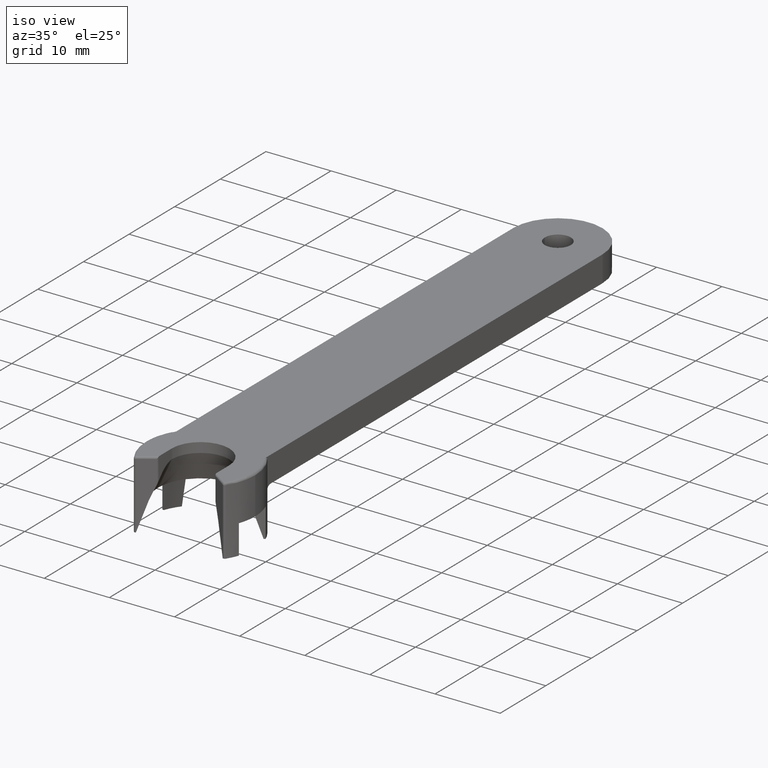
[diagram: clean part render]
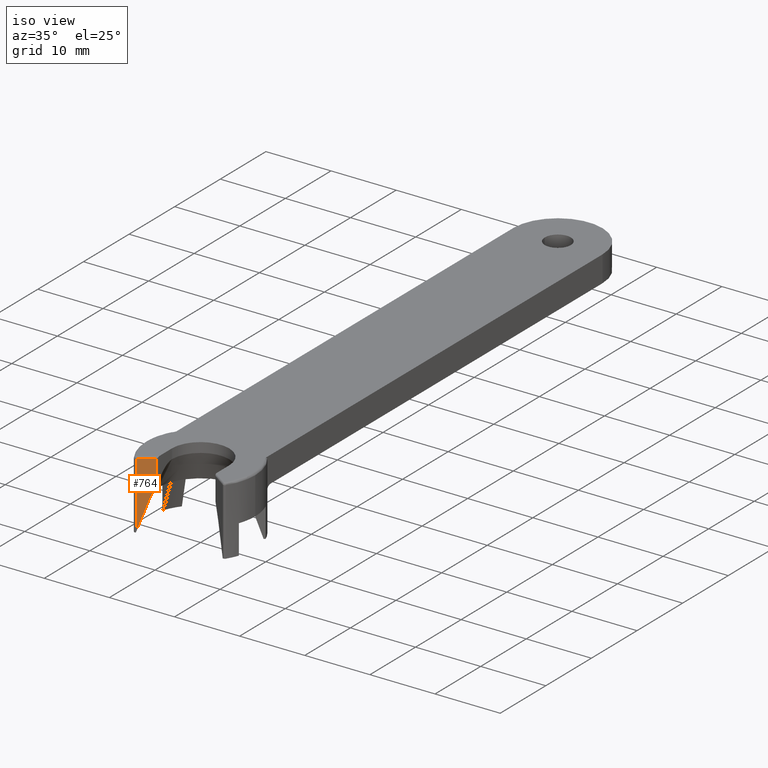
[diagram: same view with one face highlighted and labeled with its STEP entity id]
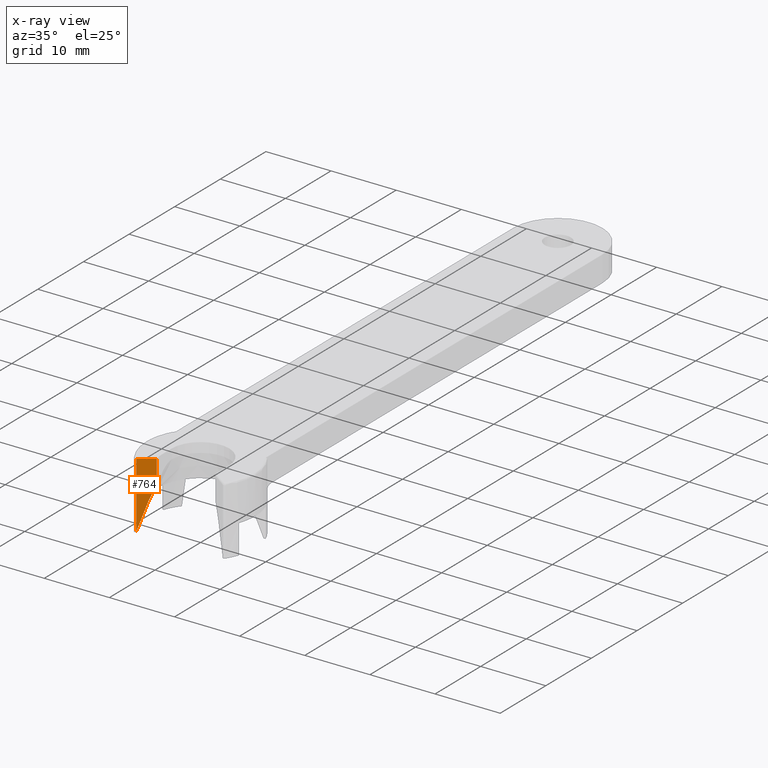
[diagram: x-ray of the same camera — body ghosted, the highlighted face saturated]
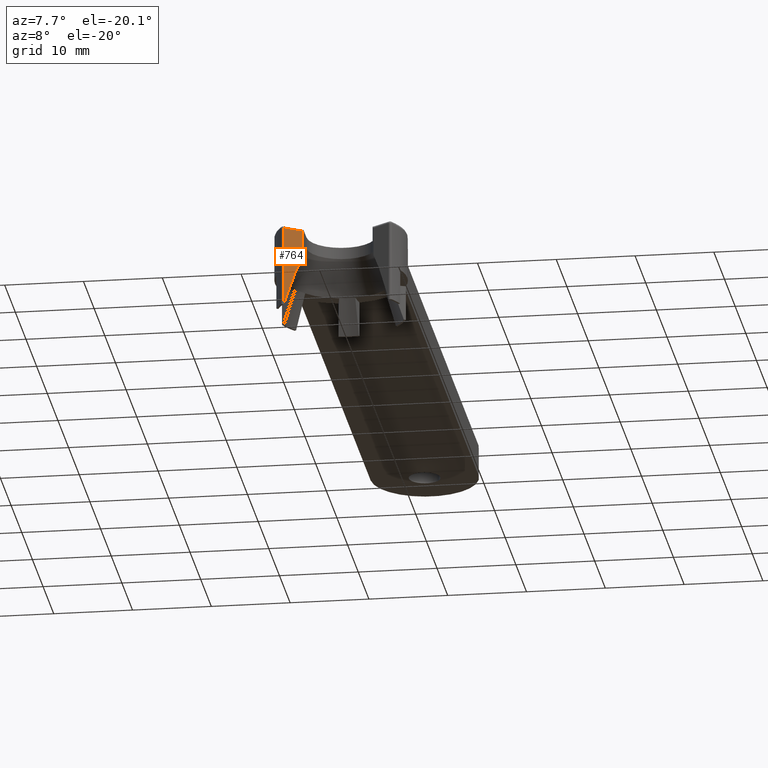
[diagram: same view with one face highlighted and labeled with its STEP entity id]
A machine part, iso view. The second image highlights one B-rep face of the part: STEP entity #764.
The next image is the same camera in x-ray: the body ghosted, the highlighted face saturated — about 0% of this face is hidden behind the body in this view.
A second angle (auxiliary view) of the same face is appended — the face is thin or edge-on in the first view.
In plain terms, the highlighted planar face has unit normal (-0.5736, 0.8192, 0).
Its self-contained STEP definition (entity closure, byte-faithful):
#33 = CARTESIAN_POINT ( 'NONE',  ( -4.527927069088875100, -3.170488666088853200, -3.918099479699599800 ) ) ;
#73 = VECTOR ( 'NONE', #1399, 1000.000000000000000 ) ;
#80 = EDGE_CURVE ( 'NONE', #1224, #1324, #786, .T. ) ;
#117 = LINE ( 'NONE', #1434, #73 ) ;
#156 = DIRECTION ( 'NONE',  ( 0.0000000000000000000, 0.0000000000000000000, -1.000000000000000000 ) ) ;
#290 = CARTESIAN_POINT ( 'NONE',  ( -4.527927068999998600, -3.170488665999999800, -0.3000000000000000400 ) ) ;
#356 = VERTEX_POINT ( 'NONE', #1494 ) ;
#426 = AXIS2_PLACEMENT_3D ( 'NONE', #290, #1115, #1021 ) ;
#590 = DIRECTION ( 'NONE',  ( -0.8191520442628248400, -0.5735764363884163800, -0.0000000000000000000 ) ) ;
#612 = CARTESIAN_POINT ( 'NONE',  ( -4.527927068997277300, -3.170488666003884700, -0.2999999999405229500 ) ) ;
#711 = CARTESIAN_POINT ( 'NONE',  ( -4.527927068999998600, -3.170488665999999800, -5.342566762500001500 ) ) ;
#714 = EDGE_CURVE ( 'NONE', #1324, #356, #1237, .T. ) ;
#764 = ADVANCED_FACE ( 'NONE', ( #1799 ), #923, .F. ) ;
#786 = LINE ( 'NONE', #1143, #1102 ) ;
#814 = DIRECTION ( 'NONE',  ( -0.3461886131349272100, -0.2424038765499333400, -0.9063077869958308100 ) ) ;
#823 = VERTEX_POINT ( 'NONE', #612 ) ;
#890 = VECTOR ( 'NONE', #590, 1000.000000000000000 ) ;
#893 = CARTESIAN_POINT ( 'NONE',  ( -5.422045154513695000, -3.796556889610271900, -0.3000000001230621000 ) ) ;
#921 = CARTESIAN_POINT ( 'NONE',  ( -5.323164916691804500, -3.727320201654869400, -5.999999999999952900 ) ) ;
#923 = PLANE ( 'NONE',  #426 ) ;
#937 = EDGE_LOOP ( 'NONE', ( #1441, #1466, #1673, #1321, #1310 ) ) ;
#941 = LINE ( 'NONE', #893, #890 ) ;
#1021 = DIRECTION ( 'NONE',  ( 0.0000000000000000000, 0.0000000000000000000, -1.000000000000000000 ) ) ;
#1102 = VECTOR ( 'NONE', #814, 1000.000000000000100 ) ;
#1115 = DIRECTION ( 'NONE',  ( -0.5735764364166737700, 0.8191520442430387800, 0.0000000000000000000 ) ) ;
#1143 = CARTESIAN_POINT ( 'NONE',  ( -4.458560267946237100, -3.121917509055809800, -3.736500000000000400 ) ) ;
#1177 = EDGE_CURVE ( 'NONE', #1645, #356, #117, .T. ) ;
#1224 = VERTEX_POINT ( 'NONE', #33 ) ;
#1226 = CARTESIAN_POINT ( 'NONE',  ( -6.630579152214275000, -4.642781505217766600, -0.3000000000615318800 ) ) ;
#1237 = LINE ( 'NONE', #1656, #1563 ) ;
#1310 = ORIENTED_EDGE ( 'NONE', *, *, #1463, .T. ) ;
#1321 = ORIENTED_EDGE ( 'NONE', *, *, #1584, .F. ) ;
#1324 = VERTEX_POINT ( 'NONE', #921 ) ;
#1399 = DIRECTION ( 'NONE',  ( -0.0000000000000000000, -0.0000000000000000000, -1.000000000000000000 ) ) ;
#1434 = CARTESIAN_POINT ( 'NONE',  ( -6.630579151992138900, -4.642781505214891500, -5.400000000000000400 ) ) ;
#1441 = ORIENTED_EDGE ( 'NONE', *, *, #1177, .T. ) ;
#1463 = EDGE_CURVE ( 'NONE', #823, #1645, #941, .T. ) ;
#1466 = ORIENTED_EDGE ( 'NONE', *, *, #714, .F. ) ;
#1485 = LINE ( 'NONE', #711, #1807 ) ;
#1494 = CARTESIAN_POINT ( 'NONE',  ( -6.630579152157489300, -4.642781505092695000, -10.38513352381150200 ) ) ;
#1521 = DIRECTION ( 'NONE',  ( -0.2801664995669569900, -0.1961746949429164500, -0.9396926207991909100 ) ) ;
#1563 = VECTOR ( 'NONE', #1521, 1000.000000000000100 ) ;
#1584 = EDGE_CURVE ( 'NONE', #823, #1224, #1485, .T. ) ;
#1645 = VERTEX_POINT ( 'NONE', #1226 ) ;
#1656 = CARTESIAN_POINT ( 'NONE',  ( -5.993995579903287100, -4.197040888879345600, -8.250000000000000000 ) ) ;
#1673 = ORIENTED_EDGE ( 'NONE', *, *, #80, .F. ) ;
#1799 = FACE_OUTER_BOUND ( 'NONE', #937, .T. ) ;
#1807 = VECTOR ( 'NONE', #156, 1000.000000000000000 ) ;